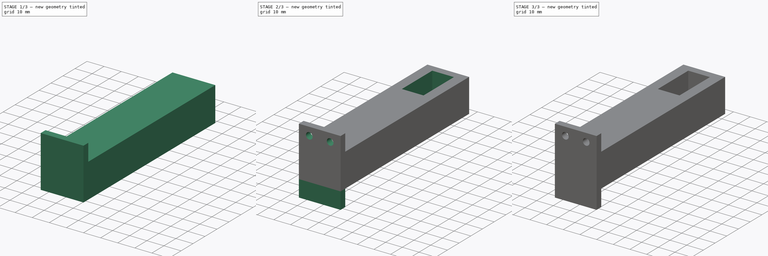
[diagram: build sequence overview — one tinted view per stage of 3, left to right]
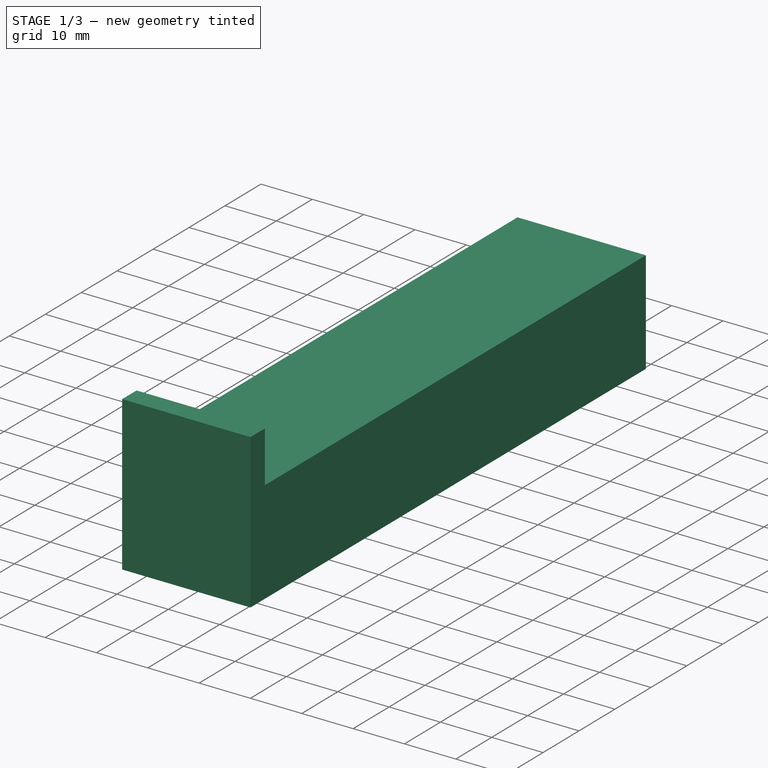
[diagram: stage 1 of 3 — iso view after this stage's code; geometry added in this stage tinted green]
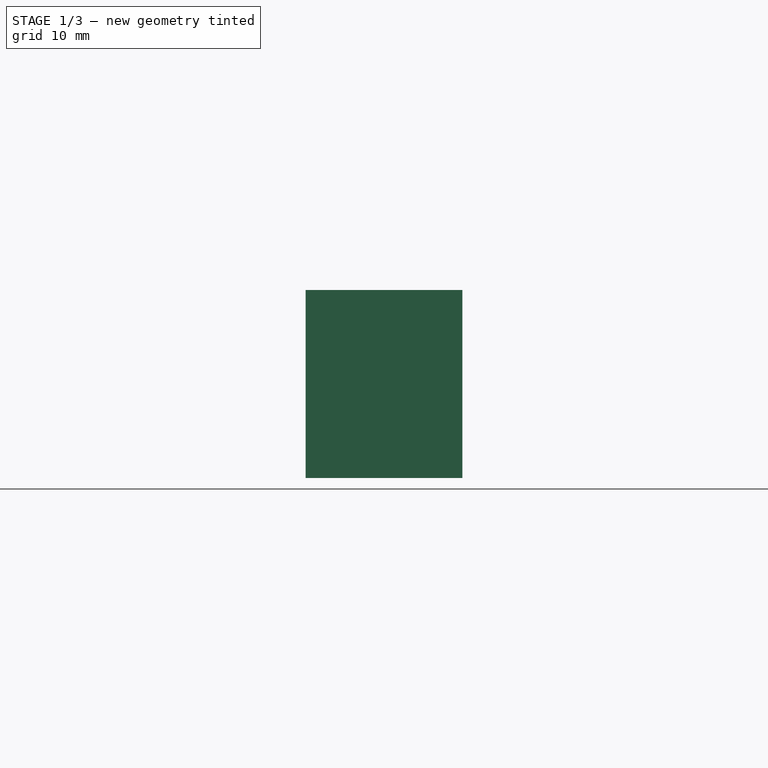
[diagram: stage 1 of 3 — front view after this stage's code; geometry added in this stage tinted green]
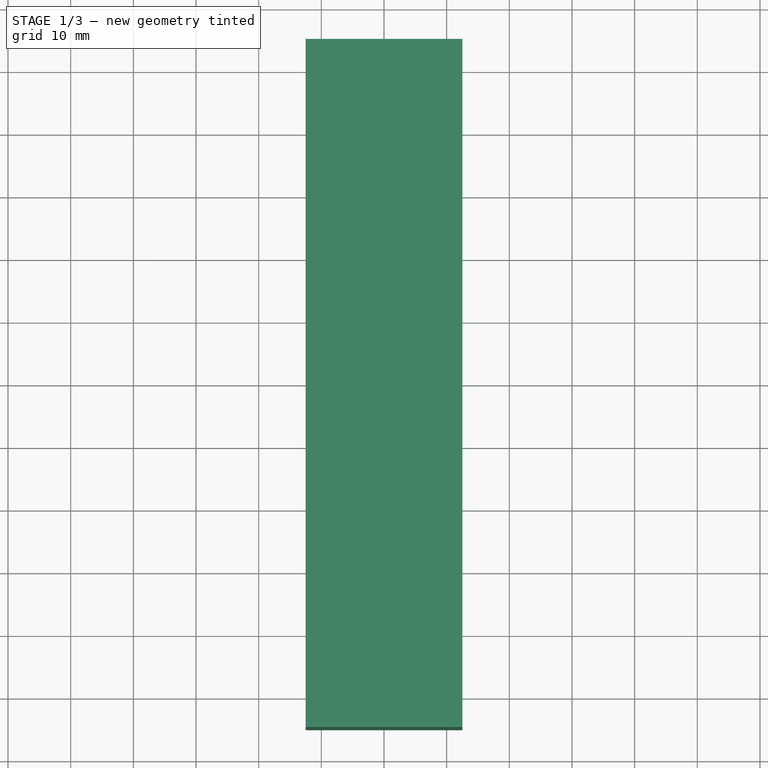
[diagram: stage 1 of 3 — top view after this stage's code; geometry added in this stage tinted green]
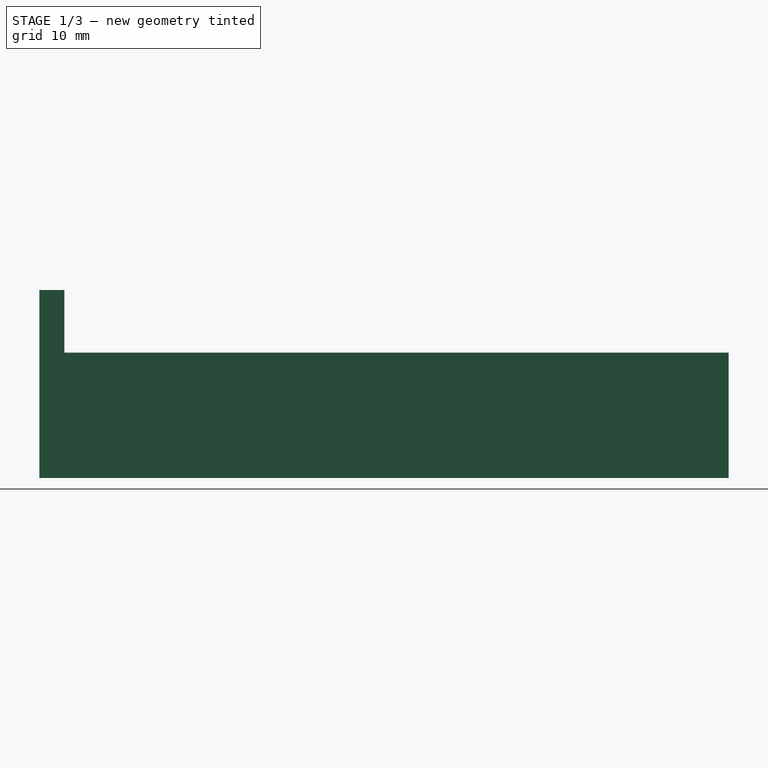
[diagram: stage 1 of 3 — right view after this stage's code; geometry added in this stage tinted green]
FCSTD DOCUMENT  (FreeCAD 0.16R6706 (Git))
Label: Suport_bloquejadora
License: All rights reserved
LicenseURL: http://en.wikipedia.org/wiki/All_rights_reserved
objects: Sketcher::SketchObject×7, PartDesign::Pad×4, PartDesign::Pocket×3
note: 21 computed .brp shape members not serialized (recipe doc carries the construction recipe); baked Part::Feature solids carry a one-line shape summary decoded from their .brp

FEATURE [Sketcher::SketchObject] Sketch
  sketch-geometry (4):
    g0: LineSegment StartX=-12.5 StartY=55 StartZ=0 EndX=12.5 EndY=55 EndZ=0
    g1: LineSegment StartX=12.5 StartY=55 StartZ=0 EndX=12.5 EndY=-55 EndZ=0
    g2: LineSegment StartX=12.5 StartY=-55 StartZ=0 EndX=-12.5 EndY=-55 EndZ=0
    g3: LineSegment StartX=-12.5 StartY=-55 StartZ=0 EndX=-12.5 EndY=55 EndZ=0
  constraints (12):
    c: Coincident(g0,g1)
    c: Coincident(g1,g2)
    c: Coincident(g2,g3)
    c: Coincident(g3,g0)
    c: Horizontal(g0)
    c: Horizontal(g2)
    c: Vertical(g1)
    c: Vertical(g3)
    c: DistanceY(g1,g1) = 110
    c: DistanceX(g0,g0) = 25
    c: Symmetric(g1,g2,g-2)
    c: Symmetric(g0,g2,g-1)
FEATURE [PartDesign::Pad] Pad
  Length = 20
  Length2 = 100
  Sketch = -> Sketch
  Type = 0
FEATURE [Sketcher::SketchObject] Sketch001
  ExternalGeometry = -> [Pad]
  Placement = pos=(0,0,20) rot=(0,0,1;0rad)
  Support = -> Pad [Face6]
  sketch-geometry (4):
    g0: LineSegment StartX=-12.5 StartY=-55 StartZ=0 EndX=12.5 EndY=-55 EndZ=0
    g1: LineSegment StartX=12.5 StartY=-55 StartZ=0 EndX=12.5 EndY=-51 EndZ=0
    g2: LineSegment StartX=12.5 StartY=-51 StartZ=0 EndX=-12.5 EndY=-51 EndZ=0
    g3: LineSegment StartX=-12.5 StartY=-51 StartZ=0 EndX=-12.5 EndY=-55 EndZ=0
  constraints (11):
    c: Coincident(g0,g1)
    c: Coincident(g1,g2)
    c: Coincident(g2,g3)
    c: Coincident(g3,g0)
    c: Horizontal(g0)
    c: Horizontal(g2)
    c: Vertical(g1)
    c: Vertical(g3)
    c: Coincident(g0,g-4)
    c: PointOnObject(g1,g-5)
    c: DistanceY(g0,g1) = 4
FEATURE [PartDesign::Pad] Pad001
  Length = 10
  Length2 = 100
  Sketch = -> Sketch001
  Type = 0
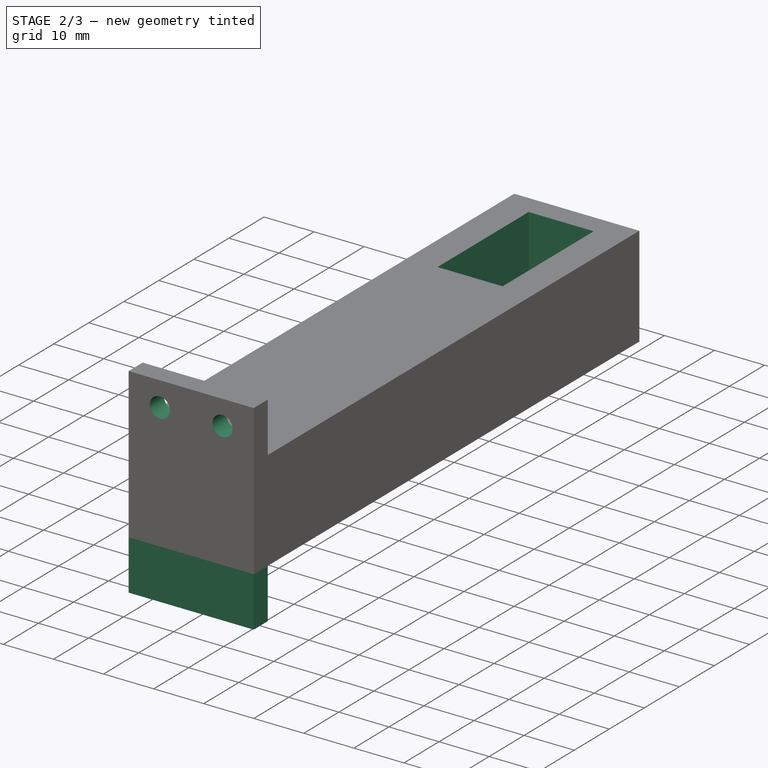
[diagram: stage 2 of 3 — iso view after this stage's code; geometry added in this stage tinted green]
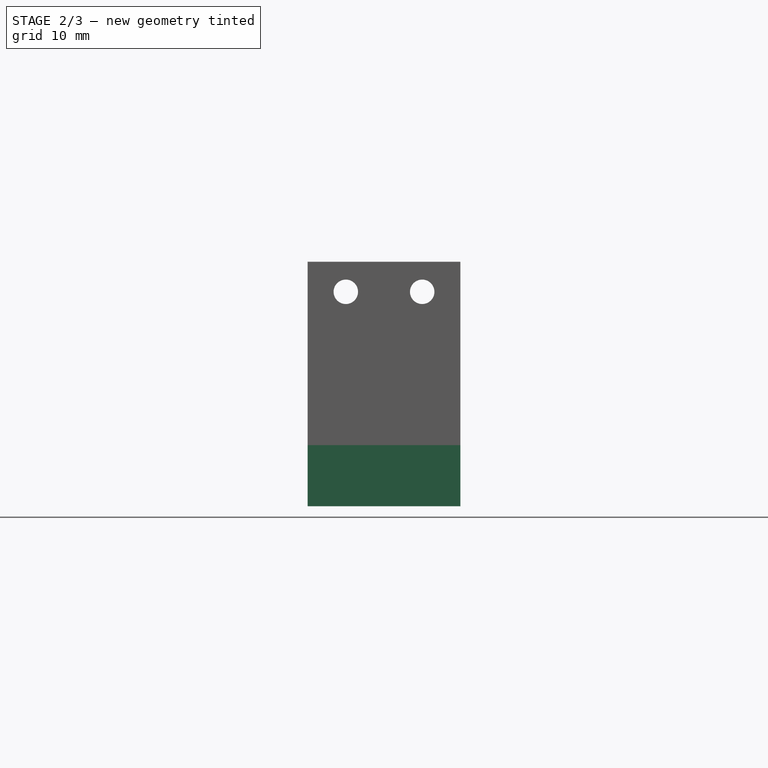
[diagram: stage 2 of 3 — front view after this stage's code; geometry added in this stage tinted green]
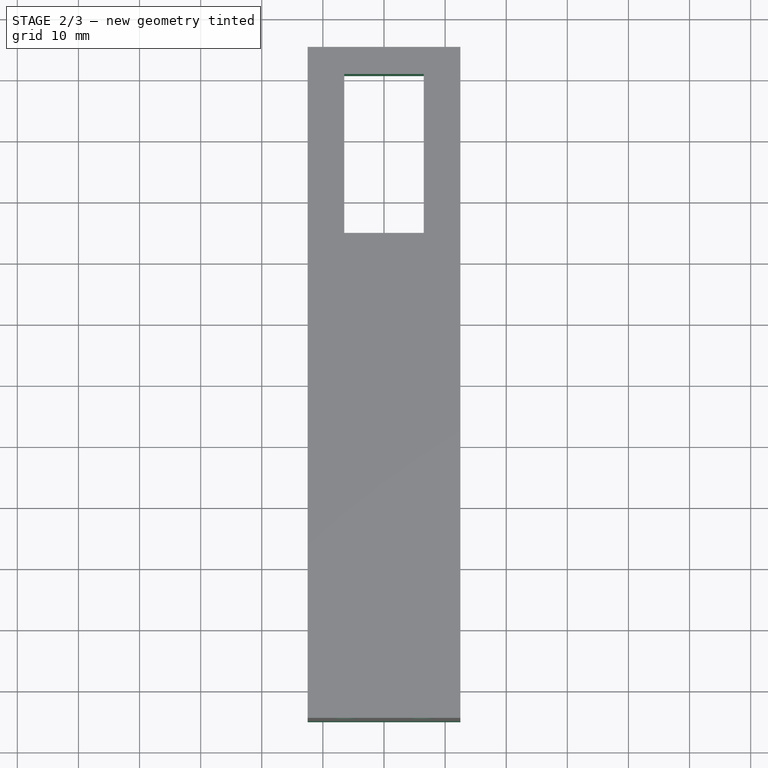
[diagram: stage 2 of 3 — top view after this stage's code; geometry added in this stage tinted green]
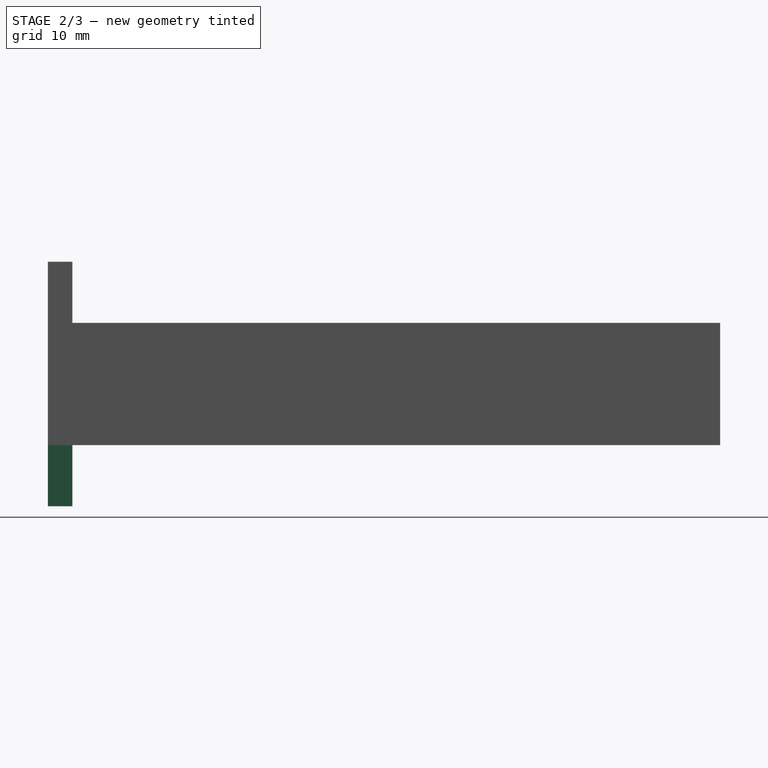
[diagram: stage 2 of 3 — right view after this stage's code; geometry added in this stage tinted green]
FEATURE [Sketcher::SketchObject] Sketch006
  Placement = pos=(0,-55,0) rot=(1,0,0;1.5708rad)
  Support = -> Pad001 [Face10]
  sketch-geometry (3):
    g0: LineSegment StartX=0 StartY=30 StartZ=0 EndX=0 EndY=30 EndZ=0
    g1: Circle CenterX=-6.25 CenterY=25.0868 CenterZ=0 NormalX=0 NormalY=0 NormalZ=1 Radius=2
    g2: Circle CenterX=6.25 CenterY=25.0868 CenterZ=0 NormalX=0 NormalY=0 NormalZ=1 Radius=2
  constraints (2):
    c: Vertical(g0)
    c: PointOnObject(g0,g-2)
FEATURE [PartDesign::Pocket] Pocket
  Length = 4
  Sketch = -> Sketch006
  Type = 0
FEATURE [Sketcher::SketchObject] Sketch007  label="servo"
  Placement = pos=(0,0,20) rot=(0,0,1;0rad)
  Support = -> Pocket [Face5]
  sketch-geometry (4):
    g0: LineSegment StartX=-6.5 StartY=50.5627 StartZ=0 EndX=6.5 EndY=50.5627 EndZ=0
    g1: LineSegment StartX=6.5 StartY=50.5627 StartZ=0 EndX=6.5 EndY=24.5627 EndZ=0
    g2: LineSegment StartX=6.5 StartY=24.5627 StartZ=0 EndX=-6.5 EndY=24.5627 EndZ=0
    g3: LineSegment StartX=-6.5 StartY=24.5627 StartZ=0 EndX=-6.5 EndY=50.5627 EndZ=0
  constraints (11):
    c: Coincident(g0,g1)
    c: Coincident(g1,g2)
    c: Coincident(g2,g3)
    c: Coincident(g3,g0)
    c: Horizontal(g0)
    c: Horizontal(g2)
    c: Vertical(g1)
    c: Vertical(g3)
    c: DistanceX(g2,g2) = 13
    c: Symmetric(g1,g2,g-2)
    c: DistanceY(g1,g1) = 26
FEATURE [PartDesign::Pocket] Pocket003
  Length = 30
  Sketch = -> Sketch007
  Type = 0
FEATURE [Sketcher::SketchObject] Sketch008
  ExternalGeometry = -> [Pocket003]
  Placement = pos=(0,0,0) rot=(1,0,0;3.14159rad)
  Support = -> Pocket003 [Face4]
  sketch-geometry (4):
    g0: LineSegment StartX=-12.5 StartY=55 StartZ=0 EndX=12.5 EndY=55 EndZ=0
    g1: LineSegment StartX=12.5 StartY=55 StartZ=0 EndX=12.5 EndY=51 EndZ=0
    g2: LineSegment StartX=12.5 StartY=51 StartZ=0 EndX=-12.5 EndY=51 EndZ=0
    g3: LineSegment StartX=-12.5 StartY=51 StartZ=0 EndX=-12.5 EndY=55 EndZ=0
  constraints (11):
    c: Coincident(g0,g1)
    c: Coincident(g1,g2)
    c: Coincident(g2,g3)
    c: Coincident(g3,g0)
    c: Horizontal(g0)
    c: Horizontal(g2)
    c: Vertical(g1)
    c: Vertical(g3)
    c: Coincident(g0,g-4)
    c: Coincident(g0,g-5)
    c: DistanceY(g1,g0) = 4
FEATURE [PartDesign::Pad] Pad003
  Length = 10
  Length2 = 100
  Sketch = -> Sketch008
  Type = 0
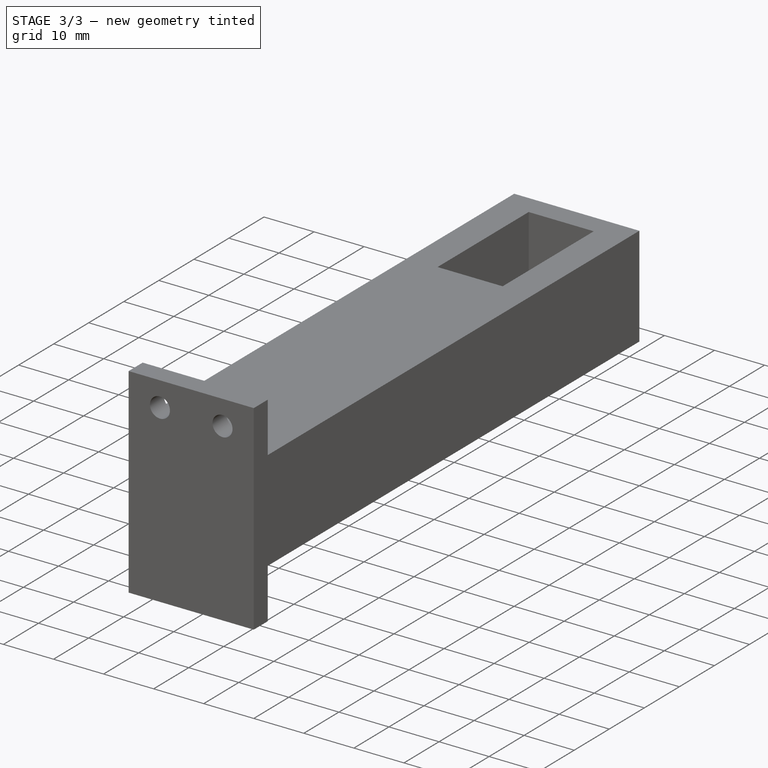
[diagram: stage 3 of 3 — iso view after this stage's code; geometry added in this stage tinted green]
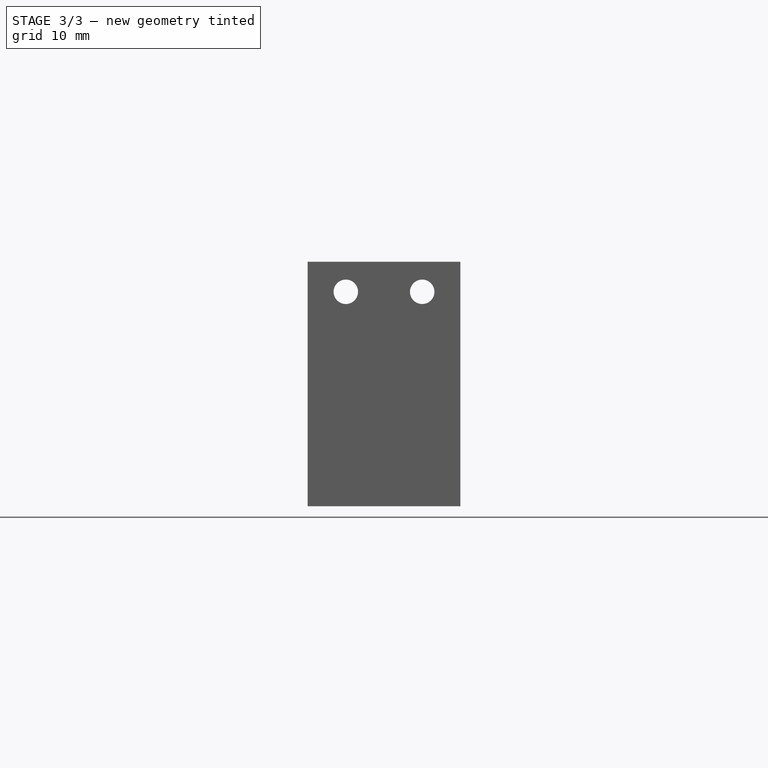
[diagram: stage 3 of 3 — front view after this stage's code; geometry added in this stage tinted green]
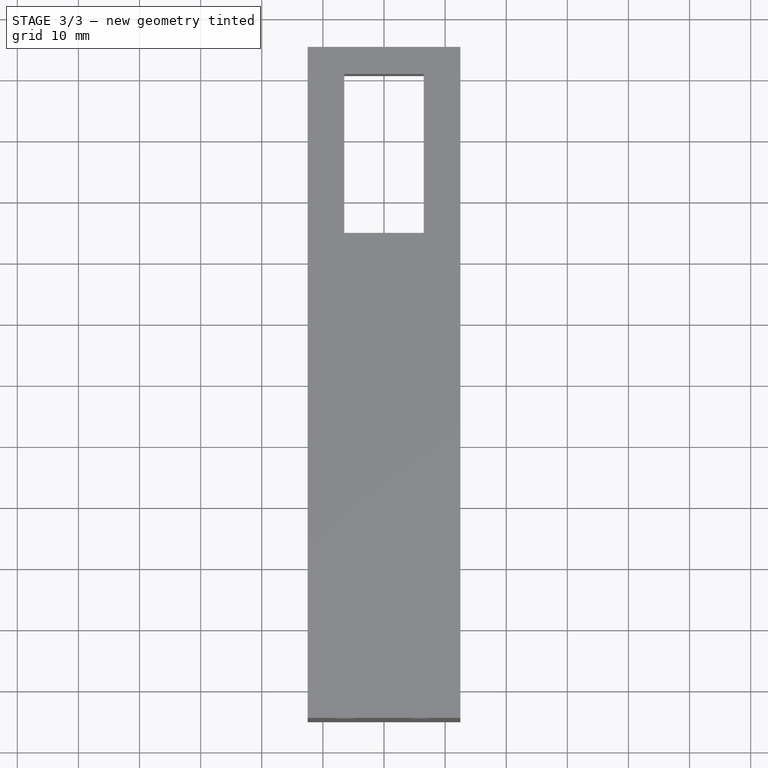
[diagram: stage 3 of 3 — top view after this stage's code; geometry added in this stage tinted green]
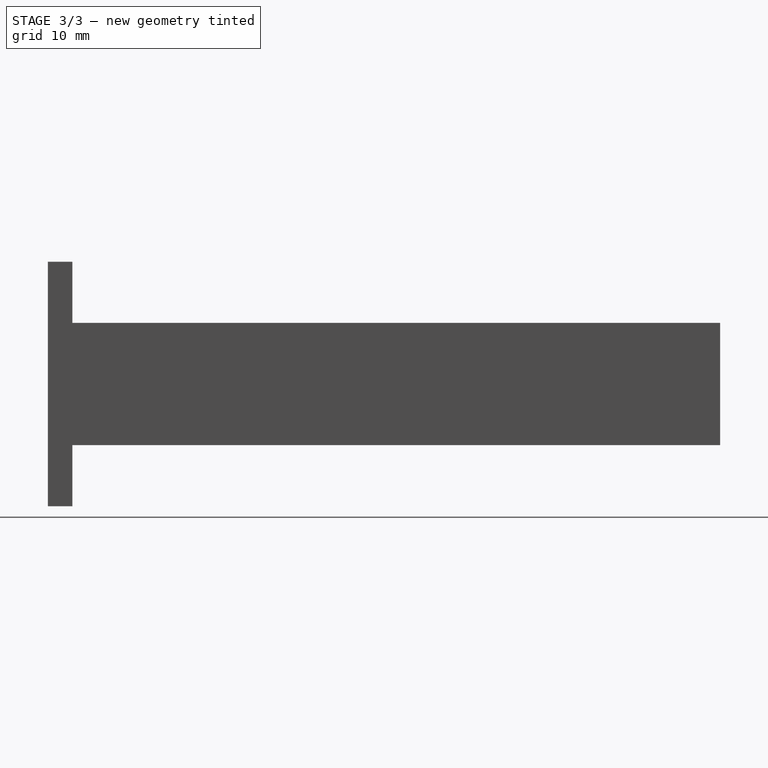
[diagram: stage 3 of 3 — right view after this stage's code; geometry added in this stage tinted green]
FEATURE [Sketcher::SketchObject] Sketch003
  Placement = pos=(0,0,0) rot=(1,0,0;3.14159rad)
  sketch-geometry (4):
    g0: LineSegment StartX=-12.5 StartY=55 StartZ=0 EndX=12.5 EndY=55 EndZ=0
    g1: LineSegment StartX=12.5 StartY=55 StartZ=0 EndX=12.5 EndY=51 EndZ=0
    g2: LineSegment StartX=12.5 StartY=51 StartZ=0 EndX=-12.5 EndY=51 EndZ=0
    g3: LineSegment StartX=-12.5 StartY=51 StartZ=0 EndX=-12.5 EndY=55 EndZ=0
  constraints (9):
    c: Coincident(g0,g1)
    c: Coincident(g1,g2)
    c: Coincident(g2,g3)
    c: Coincident(g3,g0)
    c: Horizontal(g0)
    c: Horizontal(g2)
    c: Vertical(g1)
    c: Vertical(g3)
    c: DistanceY(g1,g0) = 4
FEATURE [PartDesign::Pad] Pad002
  Length = 10
  Length2 = 100
  Placement = pos=(0,0,0) rot=(1,0,0;3.14159rad)
  Sketch = -> Sketch003
  Type = 0
FEATURE [Sketcher::SketchObject] Sketch009
  ExternalGeometry = -> [Pad003]
  Placement = pos=(0,-55,0) rot=(1,0,0;1.5708rad)
  Support = -> Pad003 [Face17]
  sketch-geometry (2):
    g0: Circle CenterX=-6.25 CenterY=-4.91325 CenterZ=0 NormalX=0 NormalY=0 NormalZ=1 Radius=2
    g1: Circle CenterX=6.25 CenterY=-4.91325 CenterZ=0 NormalX=0 NormalY=0 NormalZ=1 Radius=2
  constraints (6):
    c: Radius(g0) = 2
    c: Radius(g1) = 2
    c: Distance(g-1,g0) = 7.95
    c: Distance(g0,g-3) = 7.95
    c: Distance(g1,g-5) = 7.95
    c: Distance(g-1,g1) = 7.95
FEATURE [PartDesign::Pocket] Pocket004
  Length = 5
  Sketch = -> Sketch009
  Type = 0
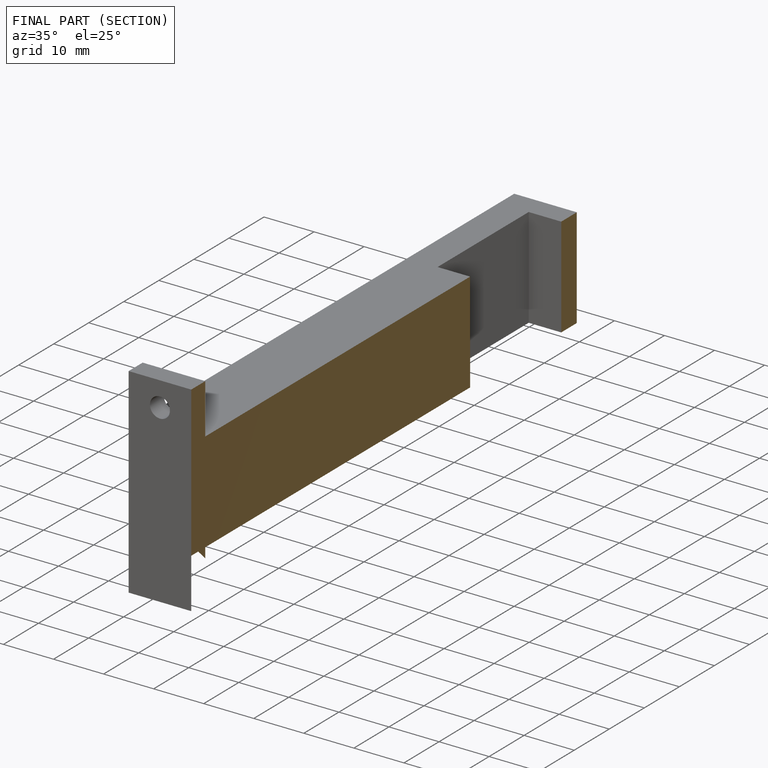
[diagram: finished part — half-section view (interior)]
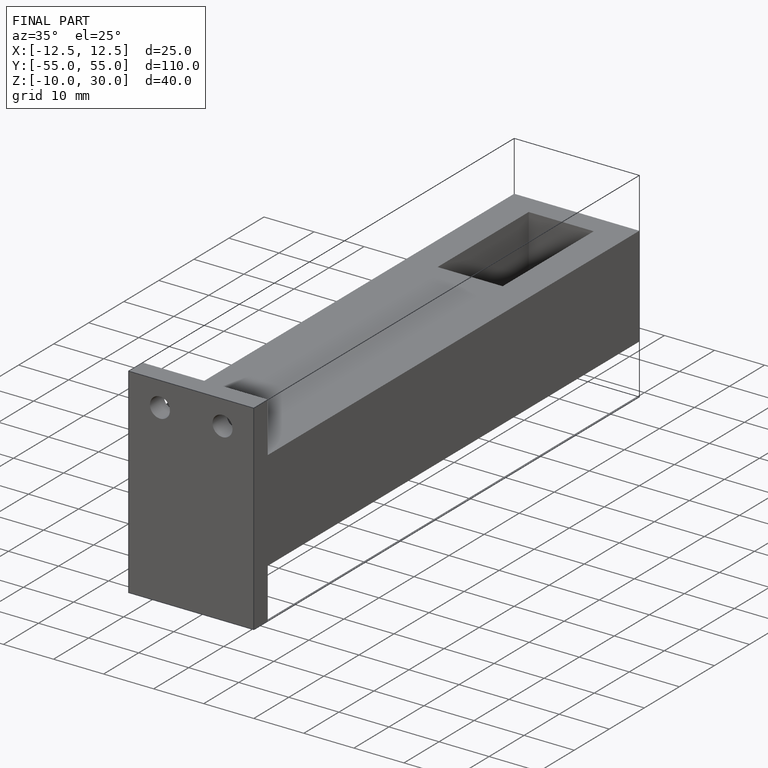
[diagram: finished part — iso view with bounding-box wireframe]
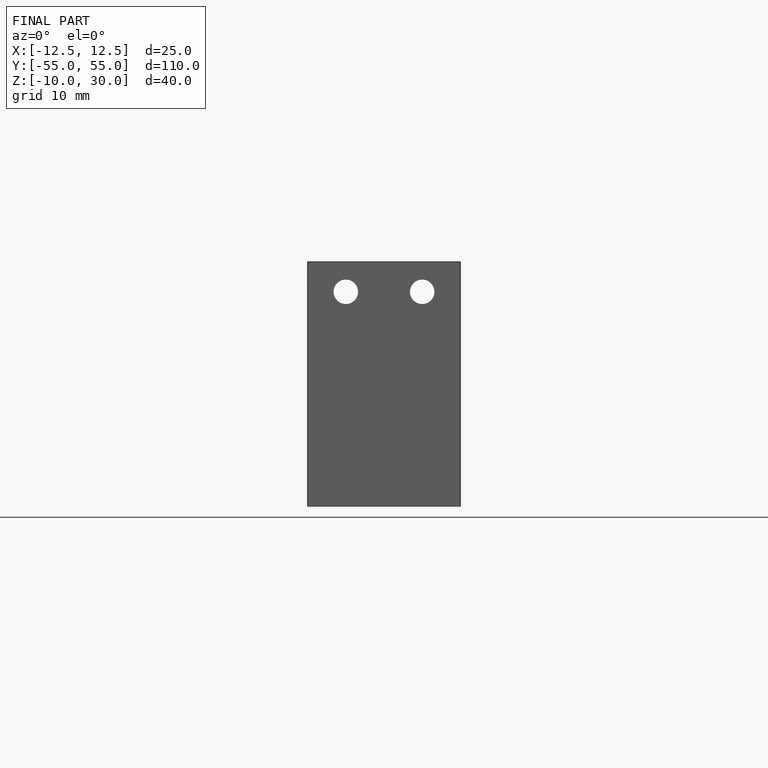
[diagram: finished part — front view with bounding-box wireframe]
